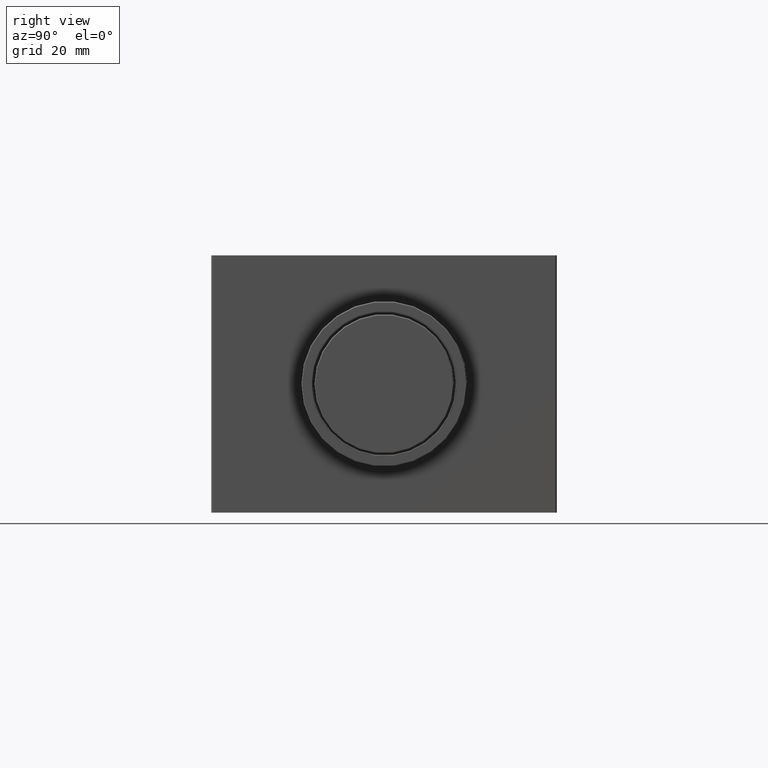
[diagram: clean part render]
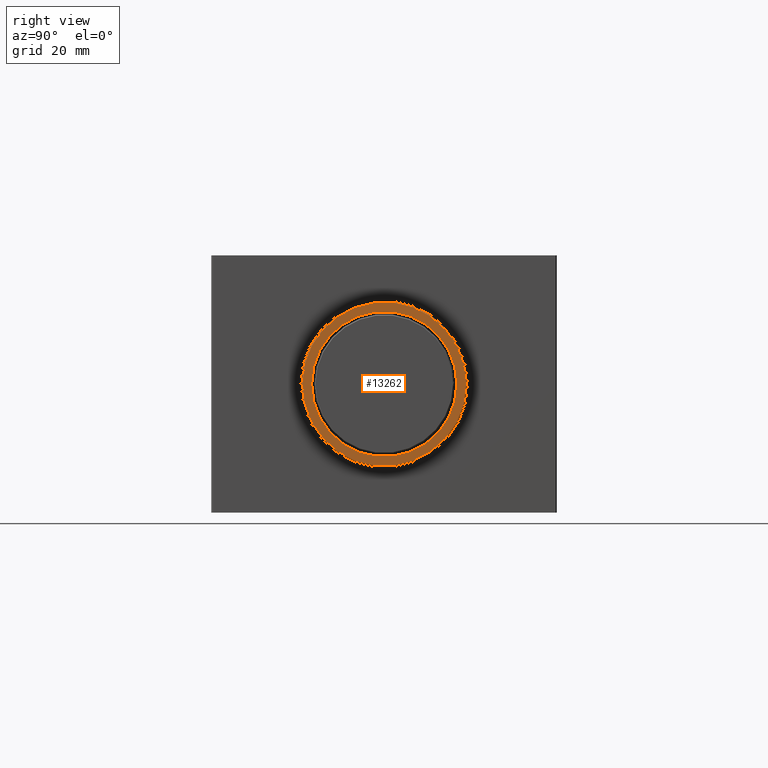
[diagram: same view with one face highlighted and labeled with its STEP entity id]
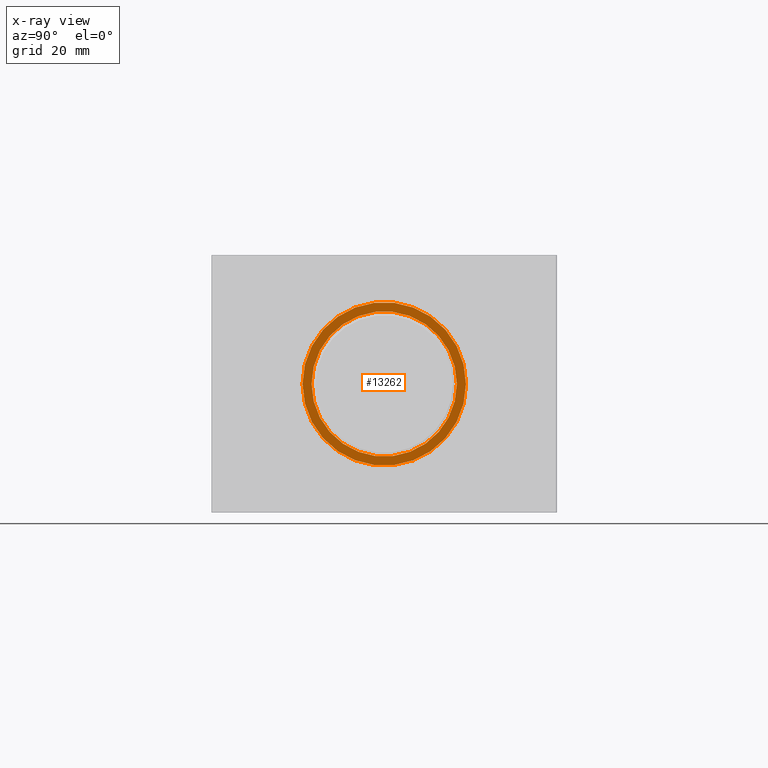
[diagram: x-ray of the same camera — body ghosted, the highlighted face saturated]
A machine part, right view. The second image highlights one B-rep face of the part: STEP entity #13262.
The next image is the same camera in x-ray: the body ghosted, the highlighted face saturated — about 0% of this face is hidden behind the body in this view.
In plain terms, the highlighted planar face has unit normal (1, -0, 0).
Its self-contained STEP definition (entity closure, byte-faithful):
#13220=CARTESIAN_POINT('',(12.229104645123261,12.668314320504654,0.0));
#13221=VERTEX_POINT('',#13220);
#13222=CARTESIAN_POINT('',(12.229104645123263,-0.031685679495353,0.0));
#13223=DIRECTION('',(1.0,0.0,0.0));
#13224=DIRECTION('',(0.0,-1.0,0.0));
#13225=AXIS2_PLACEMENT_3D('',#13222,#13223,#13224);
#13226=CIRCLE('',#13225,12.700000000000006);
#13227=EDGE_CURVE('',#13221,#13221,#13226,.T.);
#13243=CARTESIAN_POINT('',(12.229104645123261,13.468314320504650,0.0));
#13244=DIRECTION('',(1.0,0.0,0.0));
#13245=DIRECTION('',(0.0,0.0,-1.0));
#13246=AXIS2_PLACEMENT_3D('',#13243,#13244,#13245);
#13247=PLANE('',#13246);
#13248=CARTESIAN_POINT('',(12.229104645123261,14.268314320504649,-3.502374E-015));
#13249=VERTEX_POINT('',#13248);
#13250=CARTESIAN_POINT('',(12.229104645123263,-0.031685679495353,0.0));
#13251=DIRECTION('',(-1.0,0.0,0.0));
#13252=DIRECTION('',(0.0,-1.0,0.0));
#13253=AXIS2_PLACEMENT_3D('',#13250,#13251,#13252);
#13254=CIRCLE('',#13253,14.300000000000001);
#13255=EDGE_CURVE('',#13249,#13249,#13254,.T.);
#13256=ORIENTED_EDGE('',*,*,#13255,.F.);
#13257=EDGE_LOOP('',(#13256));
#13258=FACE_OUTER_BOUND('',#13257,.T.);
#13259=ORIENTED_EDGE('',*,*,#13227,.F.);
#13260=EDGE_LOOP('',(#13259));
#13261=FACE_BOUND('',#13260,.T.);
#13262=ADVANCED_FACE('',(#13258,#13261),#13247,.T.);